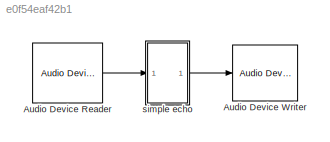
MODEL slx_e0f54eaf42b1
KIND model
CONFIG AbsTol = auto
CONFIG EnableMultiTasking = off
CONFIG FixedStep = auto
CONFIG MaxStep = auto
CONFIG MinStep = auto
CONFIG RelTol = 1e-3
CONFIG SampleTimeConstraint = Unconstrained
CONFIG Solver = VariableStepAuto
CONFIG SolverName = VariableStepAuto
CONFIG StartTime = 0.0
CONFIG StopTime = 10.0
BLOCK [Reference] Audio Device Reader  REF=audiosources/Audio Device
Reader
  Ports = [0, 1]
  SourceBlock = audiosources/Audio Device\nReader
  SourceProductBaseCode = AU
  SourceProductName = Audio System Toolbox
  SourceType = Audio Device Reader
BLOCK [Reference] Audio Device Writer  REF=dspsnks4/Audio Device
Writer
  Ports = [1]
  SourceBlock = dspsnks4/Audio Device\nWriter
  SourceProductBaseCode = DS
  SourceProductName = DSP System Toolbox
  SourceType = Audio Device Writer
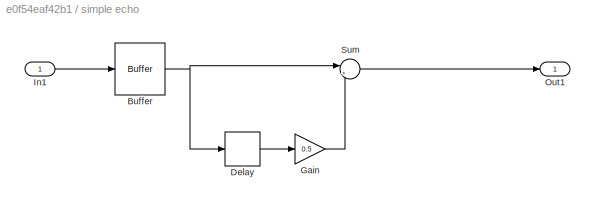
BLOCK [SubSystem] simple echo 
  Ports = [1, 1]
  RequestExecContextInheritance = off
BLOCK [Buffer] simple echo /Buffer
  N = 128
  OutputFrames = off
BLOCK [Delay] simple echo /Delay
  DelayLength = 44100
  InitialCondition = 0
  InputPortMap = u0
  InputProcessing = Columns as channels (frame based)
  Ports = [1, 1]
BLOCK [Gain] simple echo /Gain
  Gain = 0.5
  OutDataTypeStr = Inherit: Inherit via internal rule
  ParamDataTypeStr = Inherit: Inherit via internal rule
  SaturateOnIntegerOverflow = off
BLOCK [Inport] simple echo /In1
  IconDisplay = Port number
BLOCK [Outport] simple echo /Out1
  IconDisplay = Port number
BLOCK [Sum] simple echo /Sum
  IconShape = round
  InputSameDT = off
  Inputs = |++
  OutDataTypeStr = Inherit: Inherit via internal rule
  Ports = [2, 1]
  SaturateOnIntegerOverflow = off
LINE Audio Device Reader:1 -> simple echo :1
NET simple echo /Buffer:1 -> simple echo /Delay:1, simple echo /Sum:1
LINE simple echo /Delay:1 -> simple echo /Gain:1
LINE simple echo /Gain:1 -> simple echo /Sum:2
LINE simple echo /In1:1 -> simple echo /Buffer:1
LINE simple echo /Sum:1 -> simple echo /Out1:1
LINE simple echo :1 -> Audio Device Writer:1
note: NET lines group one-source signal fan-out (src -> all destinations, sorted); 1:1 wires keep LINE
